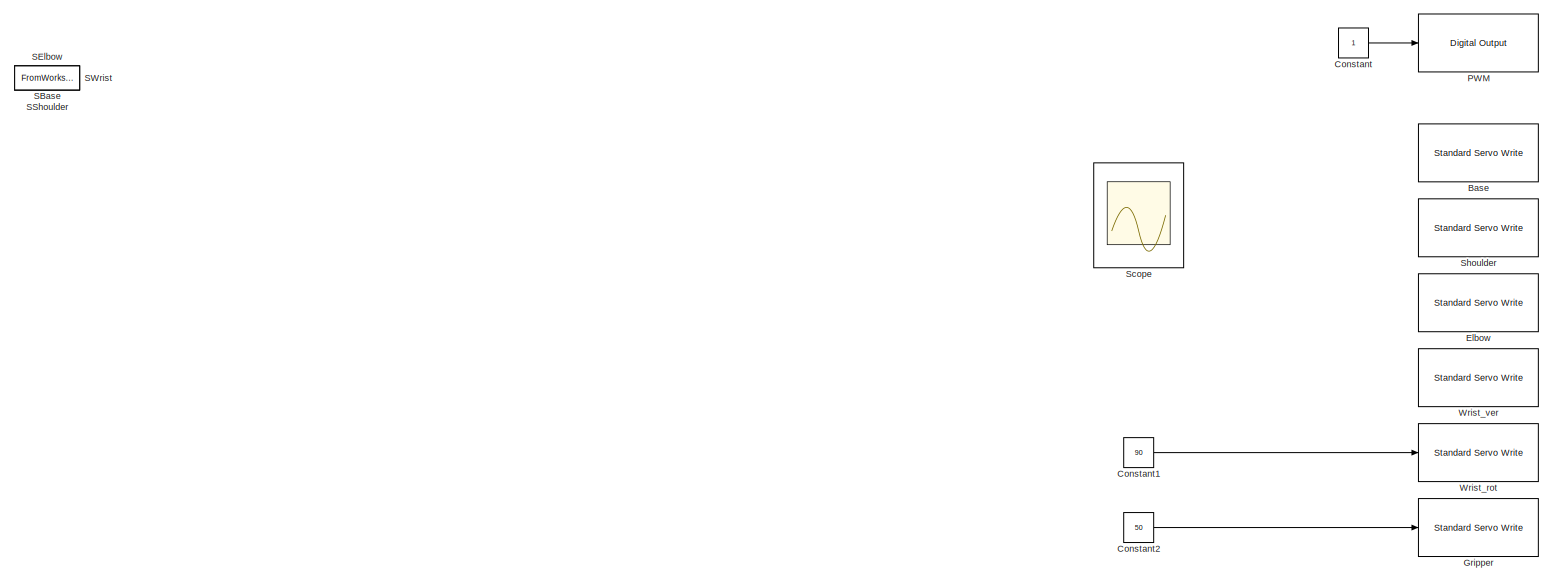
[diagram: root canvas - part 1/1, most of the canvas]
MODEL slx_50f43b8ab7dd
KIND model
CONFIG AbsTol = auto
CONFIG EnableMultiTasking = on
CONFIG FixedStep = auto
CONFIG InitFcn = cBase=90;\ncShoulder=90;\ncElbow=90;\ncWristVer=90;\ncWristRot=90;\ncGripper=73;
CONFIG MaxStep = auto
CONFIG MinStep = auto
CONFIG RelTol = 1e-3
CONFIG SampleTimeConstraint = Unconstrained
CONFIG SolverName = FixedStepAuto
CONFIG StartTime = 0.0
CONFIG StopTime = inf
BLOCK [Reference] Base  REF=arduinolib/Standard Servo Write
  Ports = [1]
  SourceBlock = arduinolib/Standard Servo Write
  SourceProductBaseCode = ARDUINO
  SourceType = Arduino Standard Servo Write
BLOCK [Constant] Constant
BLOCK [Constant] Constant1
  Value = 90
BLOCK [Constant] Constant2
  Value = 50
BLOCK [Reference] Elbow  REF=arduinolib/Standard Servo Write
  Ports = [1]
  SourceBlock = arduinolib/Standard Servo Write
  SourceProductBaseCode = ARDUINO
  SourceType = Arduino Standard Servo Write
BLOCK [Reference] Gripper  REF=arduinolib/Standard Servo Write
  Ports = [1]
  SourceBlock = arduinolib/Standard Servo Write
  SourceProductBaseCode = ARDUINO
  SourceType = Arduino Standard Servo Write
BLOCK [Reference] PWM  REF=arduinolib/Digital Output
  Ports = [1]
  SourceBlock = arduinolib/Digital Output
  SourceProductBaseCode = ARDUINO
  SourceType = Arduino Digital Output
BLOCK [FromWorkspace] SBase
  IOType = siggen
  OutputAfterFinalValue = Holding final value
  SampleTime = 0.02
  VariableName = base
  ZeroCross = off
BLOCK [FromWorkspace] SElbow
  IOType = siggen
  OutputAfterFinalValue = Holding final value
  SampleTime = 0.02
  VariableName = elbow
  ZeroCross = off
BLOCK [FromWorkspace] SShoulder
  IOType = siggen
  OutputAfterFinalValue = Holding final value
  SampleTime = 0.02
  VariableName = shoulder
  ZeroCross = off
BLOCK [FromWorkspace] SWrist
  IOType = siggen
  OutputAfterFinalValue = Holding final value
  SampleTime = 0.02
  VariableName = wrist
  ZeroCross = off
BLOCK [Scope] Scope
  Floating = off
  NumInputPorts = 4
  Ports = [4]
  ScopeSpecificationString = Simulink.scopes.TimeScopeBlockCfg('CurrentConfiguration', extmgr.ConfigurationSet(extmgr.Configuration('Core','General UI',true),extmgr.Configuration('Core','Source UI',true),extmgr.Configuration('Sources','WiredSimulink',true),extmgr.Configuration('Visuals','Time Domain',true,'SerializedDisplays',{struct('MinYLimReal','-10','MaxYLimReal','10','YLabelReal','','MinYLimMag','0','MaxYLimMag','10','Le...<+3462ch>
BLOCK [Reference] Shoulder  REF=arduinolib/Standard Servo Write
  Ports = [1]
  SourceBlock = arduinolib/Standard Servo Write
  SourceProductBaseCode = ARDUINO
  SourceType = Arduino Standard Servo Write
BLOCK [Reference] Wrist_rot  REF=arduinolib/Standard Servo Write
  Ports = [1]
  SourceBlock = arduinolib/Standard Servo Write
  SourceProductBaseCode = ARDUINO
  SourceType = Arduino Standard Servo Write
BLOCK [Reference] Wrist_ver  REF=arduinolib/Standard Servo Write
  Ports = [1]
  SourceBlock = arduinolib/Standard Servo Write
  SourceProductBaseCode = ARDUINO
  SourceType = Arduino Standard Servo Write
LINE Constant1:1 -> Wrist_rot:1
LINE Constant2:1 -> Gripper:1
LINE Constant:1 -> PWM:1
